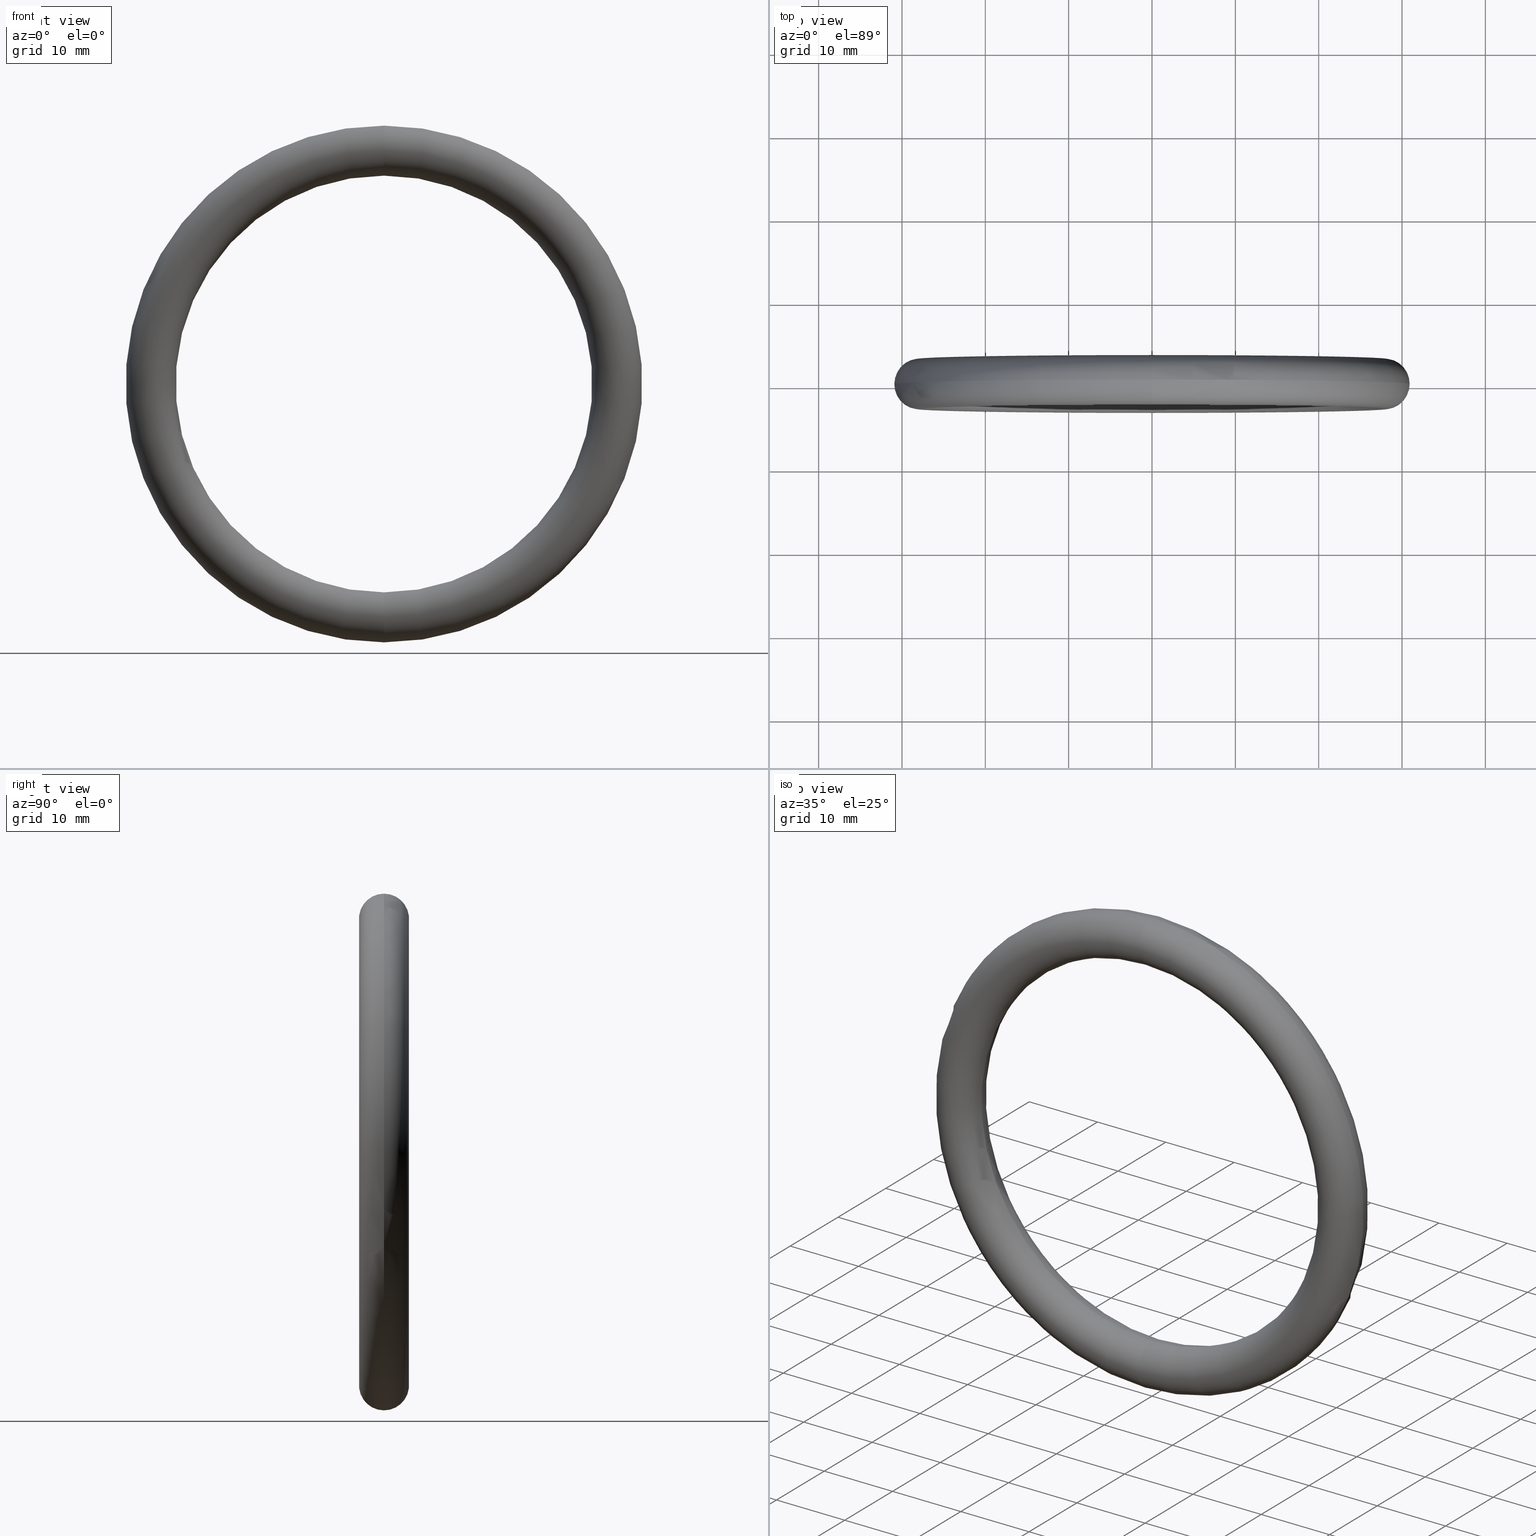
[diagram: canonical four-view strip — front | top / right | iso, engineering-drawing reading convention]
A machine part, canonical four-view strip (front | top / right | iso — engineering-drawing reading convention). The complete STEP part file that produces these views, byte-faithful:
ISO-10303-21;
HEADER;
FILE_DESCRIPTION (( 'STEP AP203' ),
    '1' );
FILE_NAME ('100053005.step',
    '2021-04-26T12:00:25',
    ( '' ),
    ( '' ),
    'SwSTEP 2.0',
    'SolidWorks 2018',
    '' );
FILE_SCHEMA (( 'CONFIG_CONTROL_DESIGN' ));
ENDSEC;

DATA;
#1 = DATE_AND_TIME ( #123, #267 ) ;
#2 =( LENGTH_UNIT ( ) NAMED_UNIT ( * ) SI_UNIT ( .MILLI., .METRE. ) );
#3 = DIRECTION ( 'NONE',  ( 1.000000000000000000, 0.000000000000000000, -1.224646799147353207E-16 ) ) ;
#4 = PERSON_AND_ORGANIZATION_ROLE ( 'classification_officer' ) ;
#5 = APPROVAL_STATUS ( 'not_yet_approved' ) ;
#6 = PERSON ( 'UNSPECIFIED', 'UNSPECIFIED', 'UNSPECIFIED', ('UNSPECIFIED'), ('UNSPECIFIED'), ('UNSPECIFIED') ) ;
#7 = PERSON_AND_ORGANIZATION_ROLE ( 'creator' ) ;
#8 = FACE_OUTER_BOUND ( 'NONE', #240, .T. ) ;
#9 = APPLICATION_CONTEXT ( 'configuration controlled 3d designs of mechanical parts and assemblies' ) ;
#10 = EDGE_CURVE ( 'NONE', #78, #47, #193, .T. ) ;
#11 = DATE_AND_TIME ( #127, #46 ) ;
#12 = ORIENTED_EDGE ( 'NONE', *, *, #27, .T. ) ;
#13 = PRODUCT_DEFINITION_SHAPE ( 'NONE', 'NONE',  #33 ) ;
#14 = COORDINATED_UNIVERSAL_TIME_OFFSET ( 1, 0, .AHEAD. ) ;
#15 = APPROVAL_PERSON_ORGANIZATION ( #200, #84, #118 ) ;
#16 = CC_DESIGN_APPROVAL ( #74, ( #160 ) ) ;
#17 = CIRCLE ( 'NONE', #34, 31.00000000000000000 ) ;
#18 = ORIENTED_EDGE ( 'NONE', *, *, #45, .F. ) ;
#19 = PRODUCT_RELATED_PRODUCT_CATEGORY ( 'detail', '', ( #96 ) ) ;
#20 = PERSON_AND_ORGANIZATION ( #6, #128 ) ;
#21 = DIRECTION ( 'NONE',  ( -1.224646799147352221E-16, 0.000000000000000000, -1.000000000000000000 ) ) ;
#22 = APPROVAL_DATE_TIME ( #89, #74 ) ;
#23 = CC_DESIGN_DATE_AND_TIME_ASSIGNMENT ( #259, #120, ( #160 ) ) ;
#24 = DIRECTION ( 'NONE',  ( 0.000000000000000000, 0.000000000000000000, 1.000000000000000000 ) ) ;
#25 = AXIS2_PLACEMENT_3D ( 'NONE', #136, #44, #152 ) ;
#26 = APPROVAL_ROLE ( '' ) ;
#27 = EDGE_CURVE ( 'NONE', #73, #147, #235, .T. ) ;
#28 = COORDINATED_UNIVERSAL_TIME_OFFSET ( 1, 0, .AHEAD. ) ;
#29 = SECURITY_CLASSIFICATION ( '', '', #161 ) ;
#30 = ADVANCED_FACE ( 'NONE', ( #8 ), #242, .T. ) ;
#31 = APPROVAL_DATE_TIME ( #93, #183 ) ;
#32 = PERSON_AND_ORGANIZATION_ROLE ( 'creator' ) ;
#33 = PRODUCT_DEFINITION ( 'UNKNOWN', '', #230, #56 ) ;
#34 = AXIS2_PLACEMENT_3D ( 'NONE', #173, #172, #237 ) ;
#35 = FACE_OUTER_BOUND ( 'NONE', #94, .T. ) ;
#36 = LOCAL_TIME ( 14, 0, 25.00000000000000000, #97 ) ;
#37 = EDGE_CURVE ( 'NONE', #78, #147, #124, .T. ) ;
#38 = ORIENTED_EDGE ( 'NONE', *, *, #40, .F. ) ;
#39 = CARTESIAN_POINT ( 'NONE',  ( 0.000000000000000000, 0.000000000000000000, 0.000000000000000000 ) ) ;
#40 = EDGE_CURVE ( 'NONE', #147, #73, #63, .T. ) ;
#41 = APPLICATION_CONTEXT ( 'configuration controlled 3d designs of mechanical parts and assemblies' ) ;
#42 = DIRECTION ( 'NONE',  ( 0.000000000000000000, 0.000000000000000000, 1.000000000000000000 ) ) ;
#43 = SHAPE_DEFINITION_REPRESENTATION ( #13, #248 ) ;
#44 = DIRECTION ( 'NONE',  ( 0.000000000000000000, 0.000000000000000000, 1.000000000000000000 ) ) ;
#45 = EDGE_CURVE ( 'NONE', #47, #73, #58, .T. ) ;
#46 = LOCAL_TIME ( 14, 0, 25.00000000000000000, #241 ) ;
#47 = VERTEX_POINT ( 'NONE', #149 ) ;
#48 = APPROVAL_STATUS ( 'not_yet_approved' ) ;
#49 = CC_DESIGN_PERSON_AND_ORGANIZATION_ASSIGNMENT ( #145, #105, ( #33 ) ) ;
#50 = AXIS2_PLACEMENT_3D ( 'NONE', #252, #64, #69 ) ;
#51 = APPROVAL ( #222, 'UNSPECIFIED' ) ;
#52 = PERSON_AND_ORGANIZATION ( #6, #128 ) ;
#53 = PERSON_AND_ORGANIZATION ( #6, #128 ) ;
#54 = ORIENTED_EDGE ( 'NONE', *, *, #40, .T. ) ;
#55 = AXIS2_PLACEMENT_3D ( 'NONE', #206, #208, #154 ) ;
#56 = DESIGN_CONTEXT ( 'detailed design', #9, 'design' ) ;
#57 = AXIS2_PLACEMENT_3D ( 'NONE', #271, #192, #88 ) ;
#58 = CIRCLE ( 'NONE', #57, 2.999999999999999112 ) ;
#59 = CARTESIAN_POINT ( 'NONE',  ( 0.000000000000000000, 0.000000000000000000, 0.000000000000000000 ) ) ;
#60 = CC_DESIGN_PERSON_AND_ORGANIZATION_ASSIGNMENT ( #52, #130, ( #29 ) ) ;
#61 = DIRECTION ( 'NONE',  ( -0.000000000000000000, -1.000000000000000000, -0.000000000000000000 ) ) ;
#62 = CARTESIAN_POINT ( 'NONE',  ( 3.061616997868383437E-15, 0.000000000000000000, 25.00000000000000000 ) ) ;
#63 = CIRCLE ( 'NONE', #106, 25.00000000000000000 ) ;
#64 = DIRECTION ( 'NONE',  ( -0.000000000000000000, -1.000000000000000000, -0.000000000000000000 ) ) ;
#65 = DIRECTION ( 'NONE',  ( 0.000000000000000000, 0.000000000000000000, -1.000000000000000000 ) ) ;
#66 = APPROVAL_DATE_TIME ( #11, #249 ) ;
#67 = APPROVAL_DATE_TIME ( #143, #84 ) ;
#68 = ORIENTED_EDGE ( 'NONE', *, *, #265, .F. ) ;
#69 = DIRECTION ( 'NONE',  ( 0.000000000000000000, 0.000000000000000000, -1.000000000000000000 ) ) ;
#70 = AXIS2_PLACEMENT_3D ( 'NONE', #238, #3, #21 ) ;
#71 = CARTESIAN_POINT ( 'NONE',  ( 0.000000000000000000, 3.673940397442056417E-16, 0.000000000000000000 ) ) ;
#72 = APPROVAL_DATE_TIME ( #92, #166 ) ;
#73 = VERTEX_POINT ( 'NONE', #62 ) ;
#74 = APPROVAL ( #95, 'UNSPECIFIED' ) ;
#75 = MECHANICAL_CONTEXT ( 'NONE', #41, 'mechanical' ) ;
#76 = CALENDAR_DATE ( 2021, 26, 4 ) ;
#77 = AXIS2_PLACEMENT_3D ( 'NONE', #85, #188, #211 ) ;
#78 = VERTEX_POINT ( 'NONE', #116 ) ;
#79 = COORDINATED_UNIVERSAL_TIME_OFFSET ( 1, 0, .AHEAD. ) ;
#80 = ADVANCED_FACE ( 'NONE', ( #224 ), #219, .T. ) ;
#81 = CALENDAR_DATE ( 2021, 26, 4 ) ;
#82 =( GEOMETRIC_REPRESENTATION_CONTEXT ( 3 ) GLOBAL_UNCERTAINTY_ASSIGNED_CONTEXT ( ( #98 ) ) GLOBAL_UNIT_ASSIGNED_CONTEXT ( ( #2, #254, #113 ) ) REPRESENTATION_CONTEXT ( 'NONE', 'WORKASPACE' ) );
#83 = PERSON_AND_ORGANIZATION ( #6, #128 ) ;
#84 = APPROVAL ( #48, 'UNSPECIFIED' ) ;
#85 = CARTESIAN_POINT ( 'NONE',  ( 0.000000000000000000, 0.000000000000000000, 0.000000000000000000 ) ) ;
#86 = AXIS2_PLACEMENT_3D ( 'NONE', #256, #210, #87 ) ;
#87 = DIRECTION ( 'NONE',  ( 0.000000000000000000, 0.000000000000000000, -1.000000000000000000 ) ) ;
#88 = DIRECTION ( 'NONE',  ( -1.224646799147352221E-16, 0.000000000000000000, -1.000000000000000000 ) ) ;
#89 = DATE_AND_TIME ( #133, #234 ) ;
#90 = CC_DESIGN_PERSON_AND_ORGANIZATION_ASSIGNMENT ( #165, #7, ( #160 ) ) ;
#91 = AXIS2_PLACEMENT_3D ( 'NONE', #59, #61, #187 ) ;
#92 = DATE_AND_TIME ( #217, #180 ) ;
#93 = DATE_AND_TIME ( #255, #36 ) ;
#94 = EDGE_LOOP ( 'NONE', ( #268, #126, #54, #137 ) ) ;
#95 = APPROVAL_STATUS ( 'not_yet_approved' ) ;
#96 = PRODUCT ( '100053005', '100053005', '', ( #75 ) ) ;
#97 = COORDINATED_UNIVERSAL_TIME_OFFSET ( 1, 0, .AHEAD. ) ;
#98 = UNCERTAINTY_MEASURE_WITH_UNIT (LENGTH_MEASURE( 1.000000000000000082E-05 ), #2, 'distance_accuracy_value', 'NONE');
#99 = APPLICATION_PROTOCOL_DEFINITION ( 'international standard', 'config_control_design', 1994, #9 ) ;
#100 = CC_DESIGN_PERSON_AND_ORGANIZATION_ASSIGNMENT ( #109, #214, ( #262 ) ) ;
#101 = APPROVAL_PERSON_ORGANIZATION ( #223, #166, #163 ) ;
#102 = COORDINATED_UNIVERSAL_TIME_OFFSET ( 1, 0, .AHEAD. ) ;
#103 = APPROVAL_STATUS ( 'not_yet_approved' ) ;
#104 = ADVANCED_FACE ( 'NONE', ( #144 ), #186, .T. ) ;
#105 = PERSON_AND_ORGANIZATION_ROLE ( 'creator' ) ;
#106 = AXIS2_PLACEMENT_3D ( 'NONE', #71, #253, #65 ) ;
#107 = CC_DESIGN_SECURITY_CLASSIFICATION ( #182, ( #262 ) ) ;
#108 = COORDINATED_UNIVERSAL_TIME_OFFSET ( 1, 0, .AHEAD. ) ;
#109 = PERSON_AND_ORGANIZATION ( #6, #128 ) ;
#110 = CARTESIAN_POINT ( 'NONE',  ( 0.000000000000000000, 0.000000000000000000, 0.000000000000000000 ) ) ;
#111 = APPROVAL_ROLE ( '' ) ;
#112 = DESIGN_CONTEXT ( 'detailed design', #195, 'design' ) ;
#113 =( NAMED_UNIT ( * ) SI_UNIT ( $, .STERADIAN. ) SOLID_ANGLE_UNIT ( ) );
#114 = CC_DESIGN_APPROVAL ( #51, ( #33 ) ) ;
#115 = LOCAL_TIME ( 14, 0, 25.00000000000000000, #108 ) ;
#116 = CARTESIAN_POINT ( 'NONE',  ( 0.000000000000000000, 0.000000000000000000, -31.00000000000000000 ) ) ;
#117 = DIRECTION ( 'NONE',  ( 1.000000000000000000, 0.000000000000000000, 0.000000000000000000 ) ) ;
#118 = APPROVAL_ROLE ( '' ) ;
#119 = ORIENTED_EDGE ( 'NONE', *, *, #27, .F. ) ;
#120 = DATE_TIME_ROLE ( 'creation_date' ) ;
#121 = CC_DESIGN_APPROVAL ( #84, ( #262 ) ) ;
#122 = DATE_AND_TIME ( #232, #115 ) ;
#123 = CALENDAR_DATE ( 2021, 26, 4 ) ;
#124 = CIRCLE ( 'NONE', #55, 2.999999999999999112 ) ;
#125 = CC_DESIGN_DATE_AND_TIME_ASSIGNMENT ( #122, #164, ( #29 ) ) ;
#126 = ORIENTED_EDGE ( 'NONE', *, *, #212, .F. ) ;
#127 = CALENDAR_DATE ( 2021, 26, 4 ) ;
#128 = ORGANIZATION ( 'UNSPECIFIED', 'UNSPECIFIED', '' ) ;
#129 = CLOSED_SHELL ( 'NONE', ( #30, #104, #202, #80 ) ) ;
#130 = PERSON_AND_ORGANIZATION_ROLE ( 'classification_officer' ) ;
#131 = ORIENTED_EDGE ( 'NONE', *, *, #228, .T. ) ;
#132 = CC_DESIGN_PERSON_AND_ORGANIZATION_ASSIGNMENT ( #150, #4, ( #182 ) ) ;
#133 = CALENDAR_DATE ( 2021, 26, 4 ) ;
#134 = ORIENTED_EDGE ( 'NONE', *, *, #212, .T. ) ;
#135 = MANIFOLD_SOLID_BREP ( 'Austragung1', #129 ) ;
#136 = CARTESIAN_POINT ( 'NONE',  ( 0.000000000000000000, 0.000000000000000000, 0.000000000000000000 ) ) ;
#137 = ORIENTED_EDGE ( 'NONE', *, *, #265, .T. ) ;
#138 = SECURITY_CLASSIFICATION_LEVEL ( 'unclassified' ) ;
#139 = CC_DESIGN_APPROVAL ( #249, ( #29 ) ) ;
#140 = COORDINATED_UNIVERSAL_TIME_OFFSET ( 1, 0, .AHEAD. ) ;
#141 = APPLICATION_PROTOCOL_DEFINITION ( 'international standard', 'config_control_design', 1994, #195 ) ;
#142 = AXIS2_PLACEMENT_3D ( 'NONE', #170, #190, #42 ) ;
#143 = DATE_AND_TIME ( #156, #226 ) ;
#144 = FACE_OUTER_BOUND ( 'NONE', #216, .T. ) ;
#145 = PERSON_AND_ORGANIZATION ( #6, #128 ) ;
#146 = APPROVAL_PERSON_ORGANIZATION ( #194, #51, #243 ) ;
#147 = VERTEX_POINT ( 'NONE', #233 ) ;
#148 = APPROVAL_PERSON_ORGANIZATION ( #209, #74, #215 ) ;
#149 = CARTESIAN_POINT ( 'NONE',  ( 3.796405077356795115E-15, 0.000000000000000000, 31.00000000000000000 ) ) ;
#150 = PERSON_AND_ORGANIZATION ( #6, #128 ) ;
#151 = ORIENTED_EDGE ( 'NONE', *, *, #228, .F. ) ;
#152 = DIRECTION ( 'NONE',  ( 1.000000000000000000, 0.000000000000000000, 0.000000000000000000 ) ) ;
#153 = CC_DESIGN_DATE_AND_TIME_ASSIGNMENT ( #207, #201, ( #33 ) ) ;
#154 = DIRECTION ( 'NONE',  ( 0.000000000000000000, 0.000000000000000000, 1.000000000000000000 ) ) ;
#155 = DATE_TIME_ROLE ( 'classification_date' ) ;
#156 = CALENDAR_DATE ( 2021, 26, 4 ) ;
#157 = CC_DESIGN_PERSON_AND_ORGANIZATION_ASSIGNMENT ( #159, #158, ( #260 ) ) ;
#158 = PERSON_AND_ORGANIZATION_ROLE ( 'design_owner' ) ;
#159 = PERSON_AND_ORGANIZATION ( #6, #128 ) ;
#160 = PRODUCT_DEFINITION ( 'UNKNOWN', '', #262, #112 ) ;
#161 = SECURITY_CLASSIFICATION_LEVEL ( 'unclassified' ) ;
#162 = CC_DESIGN_SECURITY_CLASSIFICATION ( #29, ( #230 ) ) ;
#163 = APPROVAL_ROLE ( '' ) ;
#164 = DATE_TIME_ROLE ( 'classification_date' ) ;
#165 = PERSON_AND_ORGANIZATION ( #6, #128 ) ;
#166 = APPROVAL ( #103, 'UNSPECIFIED' ) ;
#167 = EDGE_LOOP ( 'NONE', ( #151, #68, #12, #134 ) ) ;
#168 = ORIENTED_EDGE ( 'NONE', *, *, #37, .F. ) ;
#169 = CC_DESIGN_DATE_AND_TIME_ASSIGNMENT ( #1, #155, ( #182 ) ) ;
#170 = CARTESIAN_POINT ( 'NONE',  ( 0.000000000000000000, 0.000000000000000000, -28.00000000000000000 ) ) ;
#171 = COORDINATED_UNIVERSAL_TIME_OFFSET ( 1, 0, .AHEAD. ) ;
#172 = DIRECTION ( 'NONE',  ( -0.000000000000000000, -1.000000000000000000, -0.000000000000000000 ) ) ;
#173 = CARTESIAN_POINT ( 'NONE',  ( 0.000000000000000000, 0.000000000000000000, 0.000000000000000000 ) ) ;
#174 = CIRCLE ( 'NONE', #70, 2.999999999999999112 ) ;
#175 = APPLICATION_PROTOCOL_DEFINITION ( 'international standard', 'config_control_design', 1994, #41 ) ;
#176 = MECHANICAL_CONTEXT ( 'NONE', #191, 'mechanical' ) ;
#177 = APPROVAL_PERSON_ORGANIZATION ( #83, #249, #111 ) ;
#178 = COORDINATED_UNIVERSAL_TIME_OFFSET ( 1, 0, .AHEAD. ) ;
#179 = CC_DESIGN_APPROVAL ( #166, ( #230 ) ) ;
#180 = LOCAL_TIME ( 14, 0, 25.00000000000000000, #79 ) ;
#181 = ORIENTED_EDGE ( 'NONE', *, *, #10, .T. ) ;
#182 = SECURITY_CLASSIFICATION ( '', '', #138 ) ;
#183 = APPROVAL ( #5, 'UNSPECIFIED' ) ;
#184 = PERSON_AND_ORGANIZATION ( #6, #128 ) ;
#185 = DATE_AND_TIME ( #81, #245 ) ;
#186 = TOROIDAL_SURFACE ( 'NONE', #77, 28.00000000000000000, 2.999999999999997335 ) ;
#187 = DIRECTION ( 'NONE',  ( 0.000000000000000000, 0.000000000000000000, -1.000000000000000000 ) ) ;
#188 = DIRECTION ( 'NONE',  ( -0.000000000000000000, -1.000000000000000000, -0.000000000000000000 ) ) ;
#189 = LOCAL_TIME ( 14, 0, 25.00000000000000000, #14 ) ;
#190 = DIRECTION ( 'NONE',  ( -1.000000000000000000, 0.000000000000000000, 0.000000000000000000 ) ) ;
#191 = APPLICATION_CONTEXT ( 'configuration controlled 3d designs of mechanical parts and assemblies' ) ;
#192 = DIRECTION ( 'NONE',  ( 1.000000000000000000, 0.000000000000000000, -1.224646799147353207E-16 ) ) ;
#193 = CIRCLE ( 'NONE', #91, 31.00000000000000000 ) ;
#194 = PERSON_AND_ORGANIZATION ( #6, #128 ) ;
#195 = APPLICATION_CONTEXT ( 'configuration controlled 3d designs of mechanical parts and assemblies' ) ;
#196 = PRODUCT_DEFINITION_SHAPE ( 'NONE', 'NONE',  #160 ) ;
#197 = ORIENTED_EDGE ( 'NONE', *, *, #37, .T. ) ;
#198 = CC_DESIGN_PERSON_AND_ORGANIZATION_ASSIGNMENT ( #53, #257, ( #262 ) ) ;
#199 = PERSON_AND_ORGANIZATION_ROLE ( 'design_owner' ) ;
#200 = PERSON_AND_ORGANIZATION ( #6, #128 ) ;
#201 = DATE_TIME_ROLE ( 'creation_date' ) ;
#202 = ADVANCED_FACE ( 'NONE', ( #35 ), #227, .T. ) ;
#203 = PERSON_AND_ORGANIZATION_ROLE ( 'design_supplier' ) ;
#204 = PERSON_AND_ORGANIZATION ( #6, #128 ) ;
#205 = DIRECTION ( 'NONE',  ( 0.000000000000000000, 0.000000000000000000, -1.000000000000000000 ) ) ;
#206 = CARTESIAN_POINT ( 'NONE',  ( 0.000000000000000000, 0.000000000000000000, -28.00000000000000000 ) ) ;
#207 = DATE_AND_TIME ( #258, #189 ) ;
#208 = DIRECTION ( 'NONE',  ( -1.000000000000000000, 0.000000000000000000, 0.000000000000000000 ) ) ;
#209 = PERSON_AND_ORGANIZATION ( #6, #128 ) ;
#210 = DIRECTION ( 'NONE',  ( -0.000000000000000000, -1.000000000000000000, -0.000000000000000000 ) ) ;
#211 = DIRECTION ( 'NONE',  ( 0.000000000000000000, 0.000000000000000000, -1.000000000000000000 ) ) ;
#212 = EDGE_CURVE ( 'NONE', #147, #78, #231, .T. ) ;
#213 = PRODUCT_RELATED_PRODUCT_CATEGORY ( 'detail', '', ( #260 ) ) ;
#214 = PERSON_AND_ORGANIZATION_ROLE ( 'creator' ) ;
#215 = APPROVAL_ROLE ( '' ) ;
#216 = EDGE_LOOP ( 'NONE', ( #168, #181, #251, #38 ) ) ;
#217 = CALENDAR_DATE ( 2021, 26, 4 ) ;
#218 = APPROVAL_PERSON_ORGANIZATION ( #204, #183, #26 ) ;
#219 = TOROIDAL_SURFACE ( 'NONE', #86, 28.00000000000000000, 2.999999999999997335 ) ;
#220 = CC_DESIGN_PERSON_AND_ORGANIZATION_ASSIGNMENT ( #20, #32, ( #230 ) ) ;
#221 = AXIS2_PLACEMENT_3D ( 'NONE', #266, #229, #205 ) ;
#222 = APPROVAL_STATUS ( 'not_yet_approved' ) ;
#223 = PERSON_AND_ORGANIZATION ( #6, #128 ) ;
#224 = FACE_OUTER_BOUND ( 'NONE', #167, .T. ) ;
#225 = CC_DESIGN_APPROVAL ( #183, ( #182 ) ) ;
#226 = LOCAL_TIME ( 14, 0, 25.00000000000000000, #178 ) ;
#227 = TOROIDAL_SURFACE ( 'NONE', #50, 28.00000000000000000, 2.999999999999997335 ) ;
#228 = EDGE_CURVE ( 'NONE', #47, #78, #17, .T. ) ;
#229 = DIRECTION ( 'NONE',  ( -0.000000000000000000, -1.000000000000000000, -0.000000000000000000 ) ) ;
#230 = PRODUCT_DEFINITION_FORMATION_WITH_SPECIFIED_SOURCE ( 'ANY', '', #96, .NOT_KNOWN. ) ;
#231 = CIRCLE ( 'NONE', #142, 2.999999999999999112 ) ;
#232 = CALENDAR_DATE ( 2021, 26, 4 ) ;
#233 = CARTESIAN_POINT ( 'NONE',  ( 0.000000000000000000, 0.000000000000000000, -25.00000000000000000 ) ) ;
#234 = LOCAL_TIME ( 14, 0, 25.00000000000000000, #140 ) ;
#235 = CIRCLE ( 'NONE', #221, 25.00000000000000000 ) ;
#236 = AXIS2_PLACEMENT_3D ( 'NONE', #39, #24, #117 ) ;
#237 = DIRECTION ( 'NONE',  ( 0.000000000000000000, 0.000000000000000000, -1.000000000000000000 ) ) ;
#238 = CARTESIAN_POINT ( 'NONE',  ( 3.429011037612589276E-15, 0.000000000000000000, 28.00000000000000000 ) ) ;
#239 = AXIS2_PLACEMENT_3D ( 'NONE', #110, #270, #247 ) ;
#240 = EDGE_LOOP ( 'NONE', ( #18, #131, #197, #119 ) ) ;
#241 = COORDINATED_UNIVERSAL_TIME_OFFSET ( 1, 0, .AHEAD. ) ;
#242 = TOROIDAL_SURFACE ( 'NONE', #239, 28.00000000000000000, 2.999999999999997335 ) ;
#243 = APPROVAL_ROLE ( '' ) ;
#244 = APPROVAL_DATE_TIME ( #185, #51 ) ;
#245 = LOCAL_TIME ( 14, 0, 25.00000000000000000, #28 ) ;
#246 = CC_DESIGN_PERSON_AND_ORGANIZATION_ASSIGNMENT ( #184, #203, ( #230 ) ) ;
#247 = DIRECTION ( 'NONE',  ( 0.000000000000000000, 0.000000000000000000, -1.000000000000000000 ) ) ;
#248 = ADVANCED_BREP_SHAPE_REPRESENTATION ( '100053005', ( #135, #236 ), #82 ) ;
#249 = APPROVAL ( #269, 'UNSPECIFIED' ) ;
#250 = PERSON_AND_ORGANIZATION ( #6, #128 ) ;
#251 = ORIENTED_EDGE ( 'NONE', *, *, #45, .T. ) ;
#252 = CARTESIAN_POINT ( 'NONE',  ( 0.000000000000000000, 0.000000000000000000, 0.000000000000000000 ) ) ;
#253 = DIRECTION ( 'NONE',  ( -0.000000000000000000, -1.000000000000000000, -0.000000000000000000 ) ) ;
#254 =( NAMED_UNIT ( * ) PLANE_ANGLE_UNIT ( ) SI_UNIT ( $, .RADIAN. ) );
#255 = CALENDAR_DATE ( 2021, 26, 4 ) ;
#256 = CARTESIAN_POINT ( 'NONE',  ( 0.000000000000000000, 0.000000000000000000, 0.000000000000000000 ) ) ;
#257 = PERSON_AND_ORGANIZATION_ROLE ( 'design_supplier' ) ;
#258 = CALENDAR_DATE ( 2021, 26, 4 ) ;
#259 = DATE_AND_TIME ( #76, #264 ) ;
#260 = PRODUCT ( '100053005', '100053005', '', ( #176 ) ) ;
#261 = APPLICATION_PROTOCOL_DEFINITION ( 'international standard', 'config_control_design', 1994, #191 ) ;
#262 = PRODUCT_DEFINITION_FORMATION_WITH_SPECIFIED_SOURCE ( 'ANY', '', #260, .NOT_KNOWN. ) ;
#263 = CC_DESIGN_PERSON_AND_ORGANIZATION_ASSIGNMENT ( #250, #199, ( #96 ) ) ;
#264 = LOCAL_TIME ( 14, 0, 25.00000000000000000, #171 ) ;
#265 = EDGE_CURVE ( 'NONE', #73, #47, #174, .T. ) ;
#266 = CARTESIAN_POINT ( 'NONE',  ( 0.000000000000000000, 3.673940397442056417E-16, 0.000000000000000000 ) ) ;
#267 = LOCAL_TIME ( 14, 0, 25.00000000000000000, #102 ) ;
#268 = ORIENTED_EDGE ( 'NONE', *, *, #10, .F. ) ;
#269 = APPROVAL_STATUS ( 'not_yet_approved' ) ;
#270 = DIRECTION ( 'NONE',  ( -0.000000000000000000, -1.000000000000000000, -0.000000000000000000 ) ) ;
#271 = CARTESIAN_POINT ( 'NONE',  ( 3.429011037612589276E-15, 0.000000000000000000, 28.00000000000000000 ) ) ;
ENDSEC;
END-ISO-10303-21;
